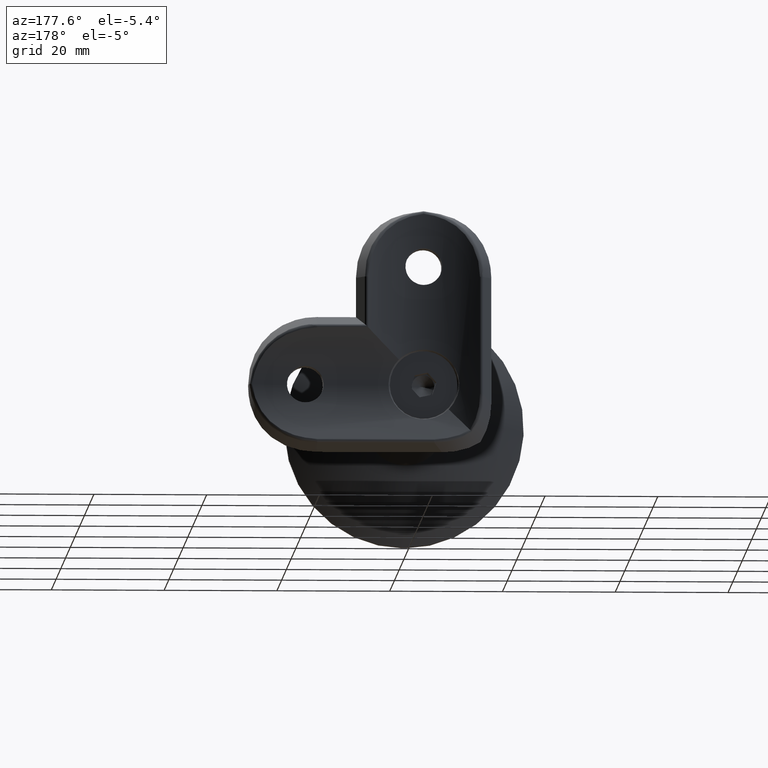
[diagram: clean part render]
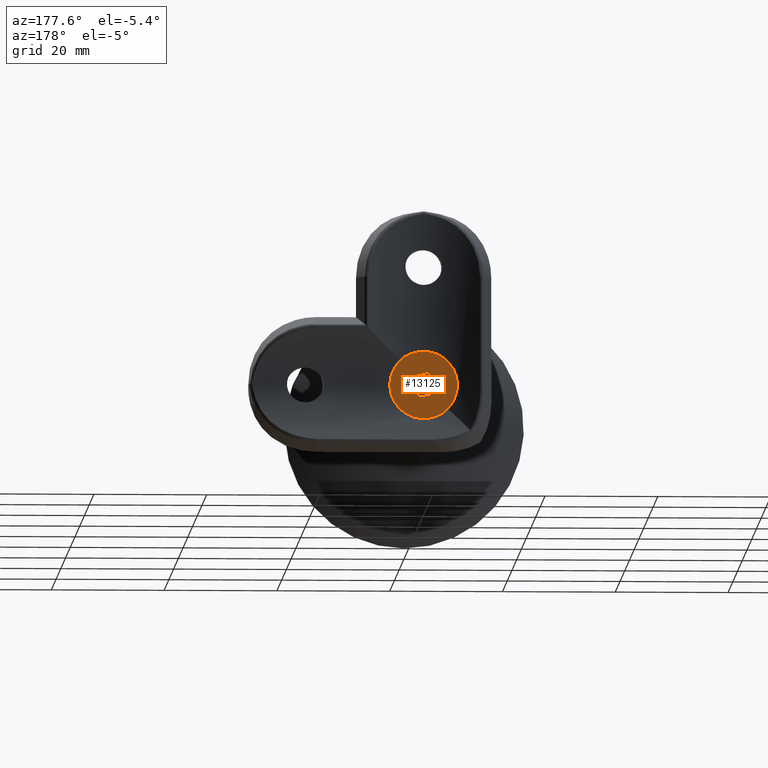
[diagram: same view with one face highlighted and labeled with its STEP entity id]
A machine part, auxiliary view. The second image highlights one B-rep face of the part: STEP entity #13125.
In plain terms, the highlighted planar face has unit normal (-0, 1, -0).
Its self-contained STEP definition (entity closure, byte-faithful):
#343 = LINE ( 'NONE', #11414, #18136 ) ;
#830 = CARTESIAN_POINT ( 'NONE',  ( -2.309401076758504701, -1.752598683377171676E-15, 0.000000000000000000 ) ) ;
#995 = ORIENTED_EDGE ( 'NONE', *, *, #5772, .T. ) ;
#1209 = VERTEX_POINT ( 'NONE', #19970 ) ;
#1786 = VECTOR ( 'NONE', #17130, 1000.000000000000000 ) ;
#2020 = DIRECTION ( 'NONE',  ( -1.000000000000000000, 0.000000000000000000, 0.000000000000000000 ) ) ;
#2993 = LINE ( 'NONE', #14077, #12372 ) ;
#3148 = AXIS2_PLACEMENT_3D ( 'NONE', #10025, #5245, #9758 ) ;
#3415 = ORIENTED_EDGE ( 'NONE', *, *, #5765, .F. ) ;
#3588 = CARTESIAN_POINT ( 'NONE',  ( 1.154700538379250574, -2.000000000000000000, -0.000000000000000000 ) ) ;
#4430 = VECTOR ( 'NONE', #19429, 1000.000000000000114 ) ;
#4465 = EDGE_LOOP ( 'NONE', ( #995 ) ) ;
#4515 = LINE ( 'NONE', #3588, #19119 ) ;
#4530 = EDGE_CURVE ( 'NONE', #1209, #17287, #343, .T. ) ;
#4861 = DIRECTION ( 'NONE',  ( 1.000000000000000000, -1.877893248421448296E-16, 0.000000000000000000 ) ) ;
#5245 = DIRECTION ( 'NONE',  ( -0.000000000000000000, 1.224646799147353207E-16, -1.000000000000000000 ) ) ;
#5428 = ORIENTED_EDGE ( 'NONE', *, *, #16643, .F. ) ;
#5636 = VERTEX_POINT ( 'NONE', #19219 ) ;
#5647 = DIRECTION ( 'NONE',  ( -0.000000000000000000, 1.224646799147353207E-16, -1.000000000000000000 ) ) ;
#5680 = CARTESIAN_POINT ( 'NONE',  ( -1.154700538379255015, -2.000000000000000000, 0.000000000000000000 ) ) ;
#5765 = EDGE_CURVE ( 'NONE', #5636, #16586, #7620, .T. ) ;
#5772 = EDGE_CURVE ( 'NONE', #20484, #20484, #8620, .T. ) ;
#6073 = CARTESIAN_POINT ( 'NONE',  ( 1.154700538379250574, -2.000000000000000000, -0.000000000000000000 ) ) ;
#6086 = DIRECTION ( 'NONE',  ( -0.4999999999999997780, 0.8660254037844388186, 0.000000000000000000 ) ) ;
#6187 = LINE ( 'NONE', #18813, #1786 ) ;
#6646 = DIRECTION ( 'NONE',  ( -0.5000000000000001110, -0.8660254037844385966, -0.000000000000000000 ) ) ;
#7191 = AXIS2_PLACEMENT_3D ( 'NONE', #19291, #5647, #13044 ) ;
#7620 = LINE ( 'NONE', #830, #4430 ) ;
#7734 = ORIENTED_EDGE ( 'NONE', *, *, #14513, .F. ) ;
#7925 = ORIENTED_EDGE ( 'NONE', *, *, #18948, .F. ) ;
#8040 = CARTESIAN_POINT ( 'NONE',  ( -1.154700538379252350, 1.999999999999999556, 0.000000000000000000 ) ) ;
#8267 = FACE_OUTER_BOUND ( 'NONE', #4465, .T. ) ;
#8620 = CIRCLE ( 'NONE', #7191, 6.000000000000000000 ) ;
#8775 = ORIENTED_EDGE ( 'NONE', *, *, #16724, .F. ) ;
#9081 = EDGE_LOOP ( 'NONE', ( #5428, #7734, #19418, #8775, #7925, #3415 ) ) ;
#9291 = VERTEX_POINT ( 'NONE', #10202 ) ;
#9758 = DIRECTION ( 'NONE',  ( 0.000000000000000000, 1.000000000000000000, 1.224646799147353207E-16 ) ) ;
#10025 = CARTESIAN_POINT ( 'NONE',  ( 0.000000000000000000, 6.000000000000000000, 0.000000000000000000 ) ) ;
#10202 = CARTESIAN_POINT ( 'NONE',  ( 1.154700538379251684, 1.999999999999999112, 0.000000000000000000 ) ) ;
#11414 = CARTESIAN_POINT ( 'NONE',  ( 2.309401076758502480, 5.022240126475751519E-17, 0.000000000000000000 ) ) ;
#12372 = VECTOR ( 'NONE', #6086, 1000.000000000000114 ) ;
#13044 = DIRECTION ( 'NONE',  ( 0.000000000000000000, 1.000000000000000000, 1.224646799147353207E-16 ) ) ;
#13125 = ADVANCED_FACE ( 'NONE', ( #18402, #8267 ), #17170, .T. ) ;
#14077 = CARTESIAN_POINT ( 'NONE',  ( -1.154700538379255015, -2.000000000000000000, 0.000000000000000000 ) ) ;
#14468 = CARTESIAN_POINT ( 'NONE',  ( 0.000000000000000000, 6.000000000000000000, -7.347880794884117764E-16 ) ) ;
#14513 = EDGE_CURVE ( 'NONE', #17287, #16527, #4515, .T. ) ;
#16032 = VECTOR ( 'NONE', #4861, 1000.000000000000000 ) ;
#16527 = VERTEX_POINT ( 'NONE', #5680 ) ;
#16586 = VERTEX_POINT ( 'NONE', #20138 ) ;
#16643 = EDGE_CURVE ( 'NONE', #16527, #5636, #2993, .T. ) ;
#16724 = EDGE_CURVE ( 'NONE', #9291, #1209, #6187, .T. ) ;
#17130 = DIRECTION ( 'NONE',  ( 0.4999999999999998890, -0.8660254037844387076, 0.000000000000000000 ) ) ;
#17170 = PLANE ( 'NONE',  #3148 ) ;
#17266 = LINE ( 'NONE', #8040, #16032 ) ;
#17287 = VERTEX_POINT ( 'NONE', #6073 ) ;
#18136 = VECTOR ( 'NONE', #6646, 1000.000000000000000 ) ;
#18402 = FACE_BOUND ( 'NONE', #9081, .T. ) ;
#18813 = CARTESIAN_POINT ( 'NONE',  ( 1.154700538379251684, 1.999999999999999112, 0.000000000000000000 ) ) ;
#18948 = EDGE_CURVE ( 'NONE', #16586, #9291, #17266, .T. ) ;
#19119 = VECTOR ( 'NONE', #2020, 1000.000000000000000 ) ;
#19219 = CARTESIAN_POINT ( 'NONE',  ( -2.309401076758504701, -1.734723475976807094E-15, -7.347880794884121708E-16 ) ) ;
#19291 = CARTESIAN_POINT ( 'NONE',  ( 0.000000000000000000, 1.799711739194228910E-31, -1.469576158976823750E-15 ) ) ;
#19418 = ORIENTED_EDGE ( 'NONE', *, *, #4530, .F. ) ;
#19429 = DIRECTION ( 'NONE',  ( 0.5000000000000001110, 0.8660254037844385966, 0.000000000000000000 ) ) ;
#19970 = CARTESIAN_POINT ( 'NONE',  ( 2.309401076758502480, 5.022240126475751519E-17, 0.000000000000000000 ) ) ;
#20138 = CARTESIAN_POINT ( 'NONE',  ( -1.154700538379252350, 1.999999999999999556, 0.000000000000000000 ) ) ;
#20484 = VERTEX_POINT ( 'NONE', #14468 ) ;